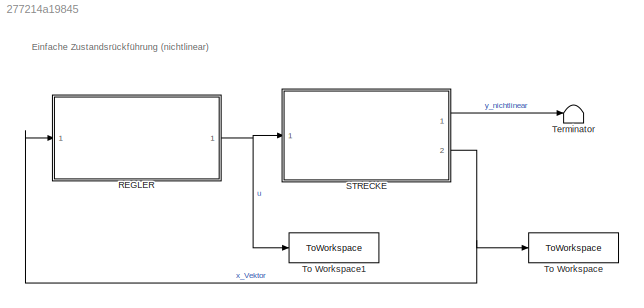
MODEL slx_277214a19845
KIND model
CONFIG AbsTol = auto
CONFIG EnableMultiTasking = off
CONFIG FixedStep = 1/1e4
CONFIG MaxStep = auto
CONFIG MinStep = auto
CONFIG RelTol = 1e-3
CONFIG SampleTimeConstraint = Unconstrained
CONFIG SolverName = FixedStepAuto
CONFIG StartTime = 0.0
CONFIG StopTime = 25
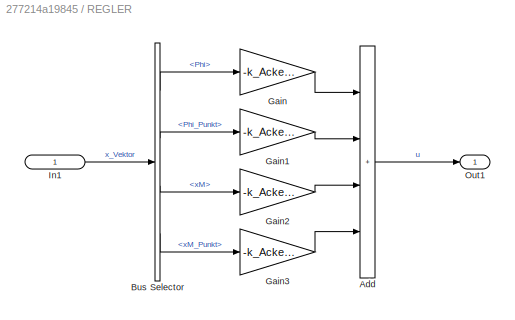
BLOCK [SubSystem] REGLER
  Ports = [1, 1]
  RequestExecContextInheritance = off
BLOCK [Sum] REGLER/Add
  IconShape = rectangular
  Inputs = ++++
  Ports = [4, 1]
BLOCK [BusSelector] REGLER/Bus Selector
  OutputSignals = Phi,Phi_Punkt,xM,xM_Punkt
  Ports = [1, 4]
BLOCK [Gain] REGLER/Gain
  Gain = -k_Acker(1)
BLOCK [Gain] REGLER/Gain1
  Gain = -k_Acker(2)
BLOCK [Gain] REGLER/Gain2
  Gain = -k_Acker(3)
BLOCK [Gain] REGLER/Gain3
  Gain = -k_Acker(4)
BLOCK [Inport] REGLER/In1
  IconDisplay = Signal name
BLOCK [Outport] REGLER/Out1
  IconDisplay = Signal name
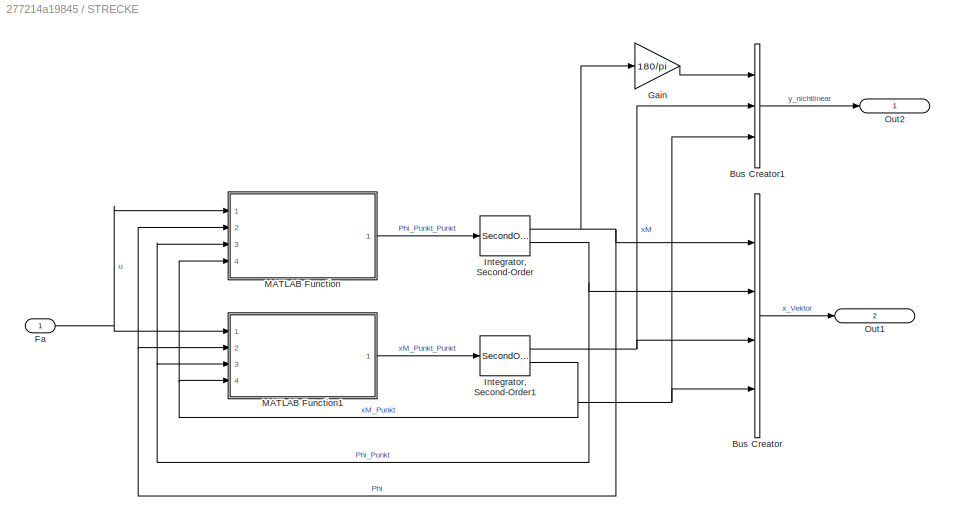
BLOCK [SubSystem] STRECKE
  Ports = [1, 2]
  RequestExecContextInheritance = off
BLOCK [BusCreator] STRECKE/Bus Creator
  DisplayOption = bar
  InheritFromInputs = on
  Inputs = 4
  Ports = [4, 1]
BLOCK [BusCreator] STRECKE/Bus Creator1
  DisplayOption = bar
  InheritFromInputs = on
  Inputs = 3
  Ports = [3, 1]
BLOCK [Inport] STRECKE/Fa
  IconDisplay = Signal name
BLOCK [Gain] STRECKE/Gain
  Gain = 180/pi
BLOCK [SecondOrderIntegrator] STRECKE/Integrator, Second-Order
  ICDXDT = x_Ruhe(2, 1)
  ICX = (start_deg*pi)/180
  Ports = [1, 2]
BLOCK [SecondOrderIntegrator] STRECKE/Integrator, Second-Order1
  ICDXDT = x_Ruhe(4, 1)
  ICX = x_Ruhe(3, 1)
  Ports = [1, 2]
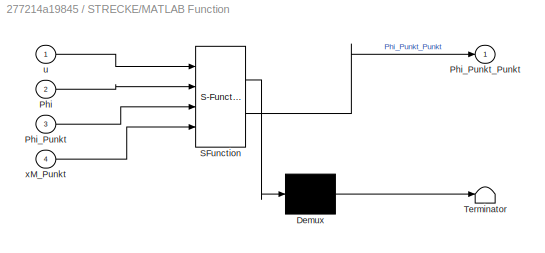
BLOCK [SubSystem] STRECKE/MATLAB Function
  ErrorFcn = Stateflow.Translate.translate
  PermitHierarchicalResolution = ExplicitOnly
  Ports = [4, 1]
  RequestExecContextInheritance = off
  SFBlockType = MATLAB Function
  TreatAsAtomicUnit = on
BLOCK [Demux] STRECKE/MATLAB Function/ Demux 
  Outputs = 1
  Ports = [1, 1]
BLOCK [S-Function] STRECKE/MATLAB Function/ SFunction 
  EnableBusSupport = on
  FunctionName = sf_sfun
  PortCounts = [4 2]
  Ports = [4, 2]
  SFcnIsStateOwnerBlock = off
  SFunctionDeploymentMode = off
  Tag = Stateflow S-Function 2
BLOCK [Terminator] STRECKE/MATLAB Function/ Terminator 
BLOCK [Inport] STRECKE/MATLAB Function/Phi
  Port = 2
BLOCK [Inport] STRECKE/MATLAB Function/Phi_Punkt
  Port = 3
BLOCK [Outport] STRECKE/MATLAB Function/Phi_Punkt_Punkt
BLOCK [Inport] STRECKE/MATLAB Function/u
BLOCK [Inport] STRECKE/MATLAB Function/xM_Punkt
  Port = 4
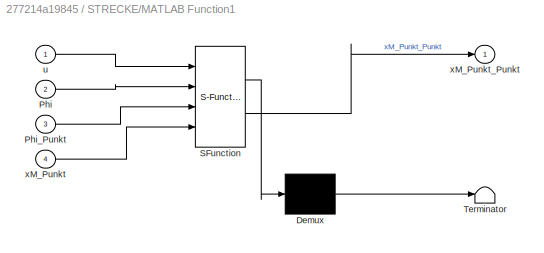
BLOCK [SubSystem] STRECKE/MATLAB Function1
  ErrorFcn = Stateflow.Translate.translate
  PermitHierarchicalResolution = ExplicitOnly
  Ports = [4, 1]
  RequestExecContextInheritance = off
  SFBlockType = MATLAB Function
  TreatAsAtomicUnit = on
BLOCK [Demux] STRECKE/MATLAB Function1/ Demux 
  Outputs = 1
  Ports = [1, 1]
BLOCK [S-Function] STRECKE/MATLAB Function1/ SFunction 
  EnableBusSupport = on
  FunctionName = sf_sfun
  PortCounts = [4 2]
  Ports = [4, 2]
  SFcnIsStateOwnerBlock = off
  SFunctionDeploymentMode = off
  Tag = Stateflow S-Function 1
BLOCK [Terminator] STRECKE/MATLAB Function1/ Terminator 
BLOCK [Inport] STRECKE/MATLAB Function1/Phi
  Port = 2
BLOCK [Inport] STRECKE/MATLAB Function1/Phi_Punkt
  Port = 3
BLOCK [Inport] STRECKE/MATLAB Function1/u
BLOCK [Inport] STRECKE/MATLAB Function1/xM_Punkt
  Port = 4
BLOCK [Outport] STRECKE/MATLAB Function1/xM_Punkt_Punkt
BLOCK [Outport] STRECKE/Out1
  IconDisplay = Signal name
  Port = 2
BLOCK [Outport] STRECKE/Out2
  IconDisplay = Signal name
BLOCK [Terminator] Terminator
BLOCK [ToWorkspace] To Workspace
  FixptAsFi = on
  MaxDataPoints = inf
  Ports = [1]
  SampleTime = -1
  SaveFormat = Timeseries
  VariableName = x_vec
BLOCK [ToWorkspace] To Workspace1
  FixptAsFi = on
  MaxDataPoints = inf
  Ports = [1]
  SampleTime = -1
  SaveFormat = Timeseries
  VariableName = u
ANNOTATION (root): Einfache Zustandsrückführung (nichtlinear)
LINE REGLER/Add:1 -> REGLER/Out1:1
LINE REGLER/Bus Selector:1 -> REGLER/Gain:1
LINE REGLER/Bus Selector:2 -> REGLER/Gain1:1
LINE REGLER/Bus Selector:3 -> REGLER/Gain2:1
LINE REGLER/Bus Selector:4 -> REGLER/Gain3:1
LINE REGLER/Gain1:1 -> REGLER/Add:2
LINE REGLER/Gain2:1 -> REGLER/Add:3
LINE REGLER/Gain3:1 -> REGLER/Add:4
LINE REGLER/Gain:1 -> REGLER/Add:1
LINE REGLER/In1:1 -> REGLER/Bus Selector:1
NET REGLER:1 -> STRECKE:1, To Workspace1:1
LINE STRECKE/Bus Creator1:1 -> STRECKE/Out2:1
LINE STRECKE/Bus Creator:1 -> STRECKE/Out1:1
NET STRECKE/Fa:1 -> STRECKE/MATLAB Function1:1, STRECKE/MATLAB Function:1
LINE STRECKE/Gain:1 -> STRECKE/Bus Creator1:1
NET STRECKE/Integrator, Second-Order1:1 -> STRECKE/Bus Creator1:2, STRECKE/Bus Creator:3
NET STRECKE/Integrator, Second-Order1:2 -> STRECKE/Bus Creator1:3, STRECKE/Bus Creator:4, STRECKE/MATLAB Function1:4, STRECKE/MATLAB Function:4
NET STRECKE/Integrator, Second-Order:1 -> STRECKE/Bus Creator:1, STRECKE/Gain:1, STRECKE/MATLAB Function1:2, STRECKE/MATLAB Function:2
NET STRECKE/Integrator, Second-Order:2 -> STRECKE/Bus Creator:2, STRECKE/MATLAB Function1:3, STRECKE/MATLAB Function:3
LINE STRECKE/MATLAB Function1:1 -> STRECKE/Integrator, Second-Order1:1
LINE STRECKE/MATLAB Function:1 -> STRECKE/Integrator, Second-Order:1
LINE STRECKE:1 -> Terminator:1
NET STRECKE:2 -> REGLER:1, To Workspace:1
note: NET lines group one-source signal fan-out (src -> all destinations, sorted); 1:1 wires keep LINE
CHART STRECKE/MATLAB Function1 states=1 transitions=1
  STATE_LABEL 'eML_blk_kernel()'
  STATE_LABEL 'SCRIPT:\nfunction xM_Punkt_Punkt = fcn(u, Phi, Phi_Punkt, xM_Punkt)\n    % Konstanten\n    c = Konstanten();\n\n    % Berechnung\n    xM_Punkt_Punkt = (c.g*tan(Phi)+1/(c.m*cos(Phi)^2)*(c.d*xM_Punkt-u)-(c.l*Phi_Punkt^2*tan(Phi))/cos(Phi)-(c.d_Mf*Phi_Punkt)/(c.m*c.l*cos(Phi)))/(1-(c.M+c.m)/(c.m*cos(Phi)^2));'
CHART STRECKE/MATLAB Function states=1 transitions=1
  STATE_LABEL 'eML_blk_kernel()'
  STATE_LABEL 'SCRIPT:\nfunction Phi_Punkt_Punkt = fcn(u, Phi, Phi_Punkt, xM_Punkt)\n    % Konstanten\n    c = Konstanten();\n\n    % Berechnung\n    Phi_Punkt_Punkt = ((u-c.g*tan(Phi)*(c.M+c.m)-c.d*xM_Punkt)/(c.m*c.l*cos(Phi))+c.d_Mf*Phi_Punkt*(c.M/(c.m^2*c.l^2*cos(Phi)^2)+1/(c.m*c.l^2*cos(Phi)^2))+Phi_Punkt^2*tan(Phi))/(1-(1/cos(Phi)^2)-c.M/(c.m*cos(Phi)^2));    '
CHART  states=0 transitions=0
CHART  states=0 transitions=0
